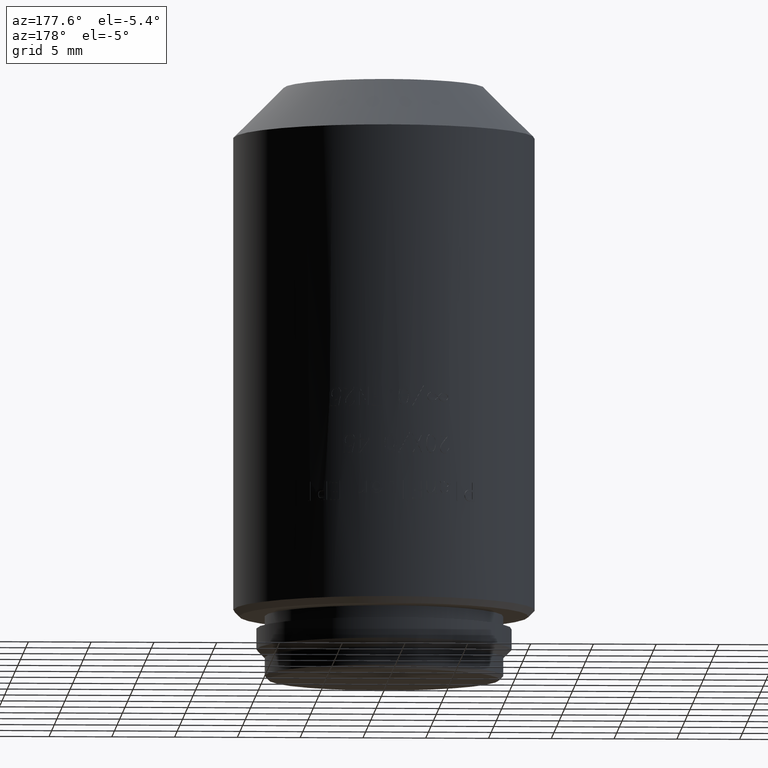
[diagram: clean part render]
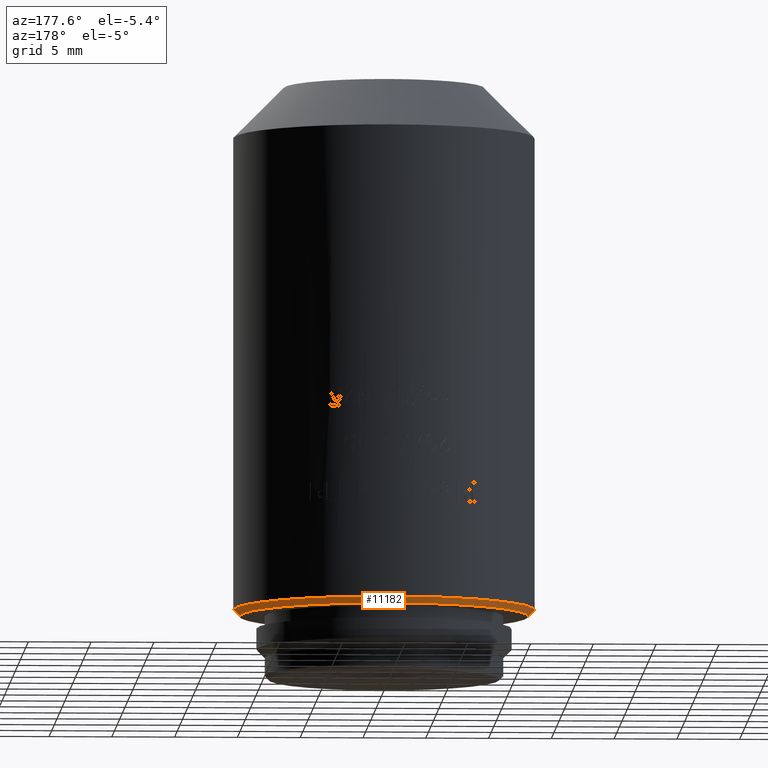
[diagram: same view with one face highlighted and labeled with its STEP entity id]
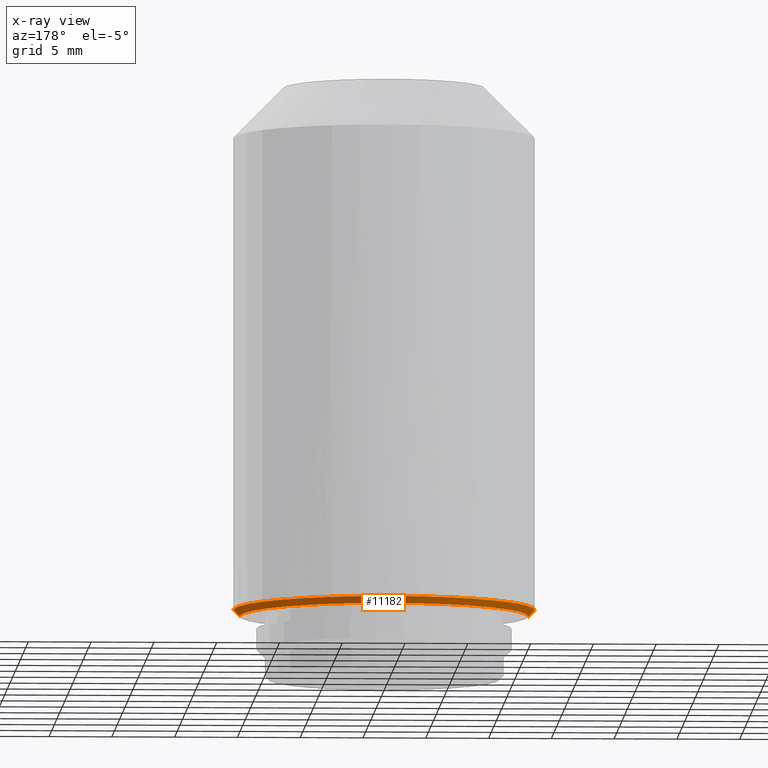
[diagram: x-ray of the same camera — body ghosted, the highlighted face saturated]
A machine part, auxiliary view. The second image highlights one B-rep face of the part: STEP entity #11182.
The next image is the same camera in x-ray: the body ghosted, the highlighted face saturated — about 0% of this face is hidden behind the body in this view.
In plain terms, the highlighted conical surface has half-angle 45 deg.
Its self-contained STEP definition (entity closure, byte-faithful):
#468 = DIRECTION ( 'NONE',  ( -1.000000000000000000, 0.000000000000000000, 0.000000000000000000 ) ) ;
#1151 = AXIS2_PLACEMENT_3D ( 'NONE', #7644, #21909, #9393 ) ;
#1293 = DIRECTION ( 'NONE',  ( 1.000000000000000000, 0.000000000000000000, 0.000000000000000000 ) ) ;
#1446 = DIRECTION ( 'NONE',  ( -0.7071067811865470176, 8.659560562354926695E-17, 0.7071067811865480168 ) ) ;
#1761 = CARTESIAN_POINT ( 'NONE',  ( -11.50000000000000000, 1.438959988998139963E-15, 5.049999999999999822 ) ) ;
#2621 = CONICAL_SURFACE ( 'NONE', #5207, 11.50000000000000000, 0.7853981633974476129 ) ;
#2822 = LINE ( 'NONE', #8604, #21709 ) ;
#3246 = ORIENTED_EDGE ( 'NONE', *, *, #6051, .T. ) ;
#3730 = CARTESIAN_POINT ( 'NONE',  ( 11.50000000000000000, 0.000000000000000000, 5.049999999999999822 ) ) ;
#4224 = ORIENTED_EDGE ( 'NONE', *, *, #13281, .F. ) ;
#5207 = AXIS2_PLACEMENT_3D ( 'NONE', #19159, #20775, #1293 ) ;
#5819 = DIRECTION ( 'NONE',  ( 0.000000000000000000, 0.000000000000000000, -1.000000000000000000 ) ) ;
#6044 = VERTEX_POINT ( 'NONE', #8764 ) ;
#6051 = EDGE_CURVE ( 'NONE', #7789, #20216, #12488, .T. ) ;
#7644 = CARTESIAN_POINT ( 'NONE',  ( 0.000000000000000000, 0.000000000000000000, 5.549999999999999822 ) ) ;
#7789 = VERTEX_POINT ( 'NONE', #1761 ) ;
#8604 = CARTESIAN_POINT ( 'NONE',  ( 11.50000000000000000, 0.000000000000000000, 5.049999999999999822 ) ) ;
#8655 = CARTESIAN_POINT ( 'NONE',  ( -11.50000000000000000, 1.408343819019456176E-15, 5.049999999999999822 ) ) ;
#8764 = CARTESIAN_POINT ( 'NONE',  ( 12.00000000000000000, 0.000000000000000000, 5.549999999999999822 ) ) ;
#9116 = AXIS2_PLACEMENT_3D ( 'NONE', #16372, #5819, #468 ) ;
#9393 = DIRECTION ( 'NONE',  ( -1.000000000000000000, 0.000000000000000000, 0.000000000000000000 ) ) ;
#11182 = ADVANCED_FACE ( 'NONE', ( #13710 ), #2621, .T. ) ;
#11758 = DIRECTION ( 'NONE',  ( 0.7071067811865470176, 0.000000000000000000, 0.7071067811865480168 ) ) ;
#12488 = LINE ( 'NONE', #8655, #17711 ) ;
#13281 = EDGE_CURVE ( 'NONE', #6044, #20216, #21135, .T. ) ;
#13710 = FACE_OUTER_BOUND ( 'NONE', #17394, .T. ) ;
#13823 = EDGE_CURVE ( 'NONE', #7789, #15184, #19096, .T. ) ;
#14819 = EDGE_CURVE ( 'NONE', #15184, #6044, #2822, .T. ) ;
#15184 = VERTEX_POINT ( 'NONE', #3730 ) ;
#16372 = CARTESIAN_POINT ( 'NONE',  ( 0.000000000000000000, 0.000000000000000000, 5.049999999999999822 ) ) ;
#16435 = CARTESIAN_POINT ( 'NONE',  ( -12.00000000000000000, 1.469576158976823750E-15, 5.549999999999999822 ) ) ;
#17394 = EDGE_LOOP ( 'NONE', ( #22158, #3246, #4224, #22071 ) ) ;
#17711 = VECTOR ( 'NONE', #1446, 1000.000000000000000 ) ;
#19096 = CIRCLE ( 'NONE', #9116, 11.50000000000000000 ) ;
#19159 = CARTESIAN_POINT ( 'NONE',  ( 0.000000000000000000, 0.000000000000000000, 5.049999999999999822 ) ) ;
#20216 = VERTEX_POINT ( 'NONE', #16435 ) ;
#20775 = DIRECTION ( 'NONE',  ( 0.000000000000000000, 0.000000000000000000, 1.000000000000000000 ) ) ;
#21135 = CIRCLE ( 'NONE', #1151, 12.00000000000000000 ) ;
#21709 = VECTOR ( 'NONE', #11758, 1000.000000000000000 ) ;
#21909 = DIRECTION ( 'NONE',  ( 0.000000000000000000, 0.000000000000000000, 1.000000000000000000 ) ) ;
#22071 = ORIENTED_EDGE ( 'NONE', *, *, #14819, .F. ) ;
#22158 = ORIENTED_EDGE ( 'NONE', *, *, #13823, .F. ) ;